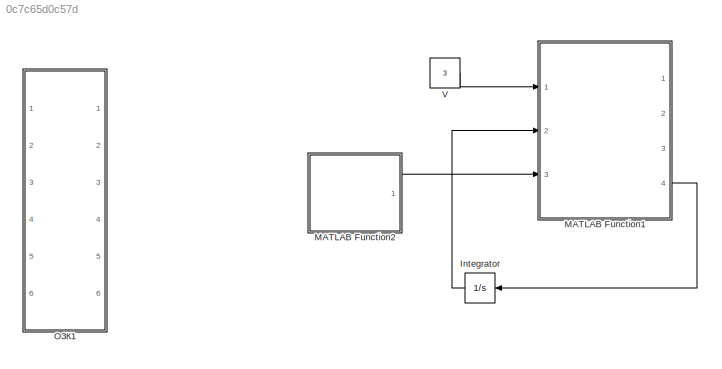
MODEL slx_0c7c65d0c57d
KIND model
CONFIG AbsTol = auto
CONFIG EnableMultiTasking = off
CONFIG FixedStep = auto
CONFIG MaxStep = auto
CONFIG MinStep = auto
CONFIG RelTol = 1e-3
CONFIG SampleTimeConstraint = Unconstrained
CONFIG Solver = VariableStepAuto
CONFIG SolverName = VariableStepAuto
CONFIG StartTime = 0.0
CONFIG StopTime = 10.0
BLOCK [Integrator] Integrator
  Ports = [1, 1]
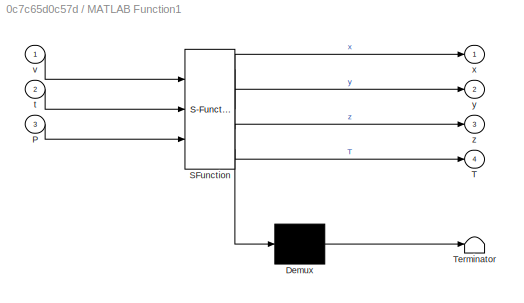
BLOCK [SubSystem] MATLAB Function1
  ErrorFcn = Stateflow.Translate.translate
  PermitHierarchicalResolution = ExplicitOnly
  Ports = [3, 4]
  RequestExecContextInheritance = off
  SFBlockType = MATLAB Function
  TreatAsAtomicUnit = on
BLOCK [Demux] MATLAB Function1/ Demux 
  Outputs = 1
  Ports = [1, 1]
BLOCK [S-Function] MATLAB Function1/ SFunction 
  EnableBusSupport = on
  FunctionName = sf_sfun
  PortCounts = [3 5]
  Ports = [3, 5]
  SFcnIsStateOwnerBlock = off
  SFunctionDeploymentMode = off
  Tag = Stateflow S-Function chernovik 3
BLOCK [Terminator] MATLAB Function1/ Terminator 
BLOCK [Inport] MATLAB Function1/P
  IconDisplay = Port number
  Port = 3
BLOCK [Outport] MATLAB Function1/T
  IconDisplay = Port number
  Port = 4
BLOCK [Inport] MATLAB Function1/t
  IconDisplay = Port number
  Port = 2
BLOCK [Inport] MATLAB Function1/v
  IconDisplay = Port number
BLOCK [Outport] MATLAB Function1/x
  IconDisplay = Port number
BLOCK [Outport] MATLAB Function1/y
  IconDisplay = Port number
  Port = 2
BLOCK [Outport] MATLAB Function1/z
  IconDisplay = Port number
  Port = 3
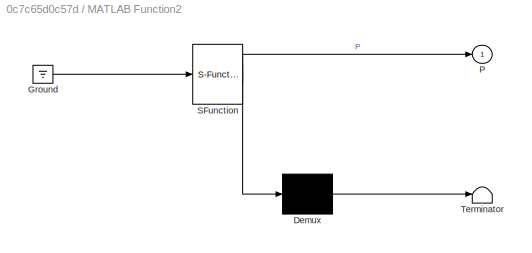
BLOCK [SubSystem] MATLAB Function2
  ErrorFcn = Stateflow.Translate.translate
  PermitHierarchicalResolution = ExplicitOnly
  Ports = [0, 1]
  RequestExecContextInheritance = off
  SFBlockType = MATLAB Function
  TreatAsAtomicUnit = on
BLOCK [Demux] MATLAB Function2/ Demux 
  Outputs = 1
  Ports = [1, 1]
BLOCK [Ground] MATLAB Function2/ Ground 
BLOCK [S-Function] MATLAB Function2/ SFunction 
  EnableBusSupport = on
  FunctionName = sf_sfun
  PortCounts = [1 2]
  Ports = [1, 2]
  SFcnIsStateOwnerBlock = off
  SFunctionDeploymentMode = off
  Tag = Stateflow S-Function chernovik 1
BLOCK [Terminator] MATLAB Function2/ Terminator 
BLOCK [Outport] MATLAB Function2/P
  IconDisplay = Port number
BLOCK [Constant] V
  Value = 3
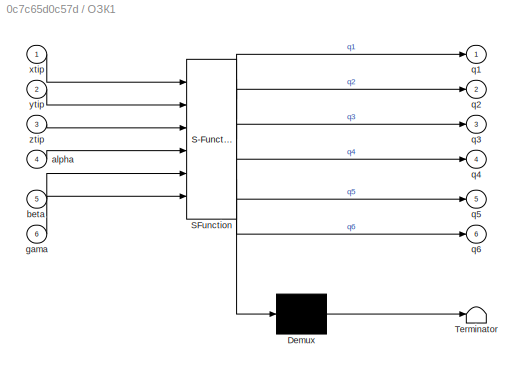
BLOCK [SubSystem] ОЗК1
  ErrorFcn = Stateflow.Translate.translate
  PermitHierarchicalResolution = ExplicitOnly
  Ports = [6, 6]
  RequestExecContextInheritance = off
  SFBlockType = MATLAB Function
  TreatAsAtomicUnit = on
BLOCK [Demux] ОЗК1/ Demux 
  Outputs = 1
  Ports = [1, 1]
BLOCK [S-Function] ОЗК1/ SFunction 
  EnableBusSupport = on
  FunctionName = sf_sfun
  PortCounts = [6 7]
  Ports = [6, 7]
  SFcnIsStateOwnerBlock = off
  SFunctionDeploymentMode = off
  Tag = Stateflow S-Function chernovik 4
BLOCK [Terminator] ОЗК1/ Terminator 
BLOCK [Inport] ОЗК1/alpha
  IconDisplay = Port number
  Port = 4
BLOCK [Inport] ОЗК1/beta
  IconDisplay = Port number
  Port = 5
BLOCK [Inport] ОЗК1/gama
  IconDisplay = Port number
  Port = 6
BLOCK [Outport] ОЗК1/q1
  IconDisplay = Port number
BLOCK [Outport] ОЗК1/q2
  IconDisplay = Port number
  Port = 2
BLOCK [Outport] ОЗК1/q3
  IconDisplay = Port number
  Port = 3
BLOCK [Outport] ОЗК1/q4
  IconDisplay = Port number
  Port = 4
BLOCK [Outport] ОЗК1/q5
  IconDisplay = Port number
  Port = 5
BLOCK [Outport] ОЗК1/q6
  IconDisplay = Port number
  Port = 6
BLOCK [Inport] ОЗК1/xtip
  IconDisplay = Port number
BLOCK [Inport] ОЗК1/ytip
  IconDisplay = Port number
  Port = 2
BLOCK [Inport] ОЗК1/ztip
  IconDisplay = Port number
  Port = 3
LINE Integrator:1 -> MATLAB Function1:2
LINE MATLAB Function1:4 -> Integrator:1
LINE MATLAB Function2:1 -> MATLAB Function1:3
LINE V:1 -> MATLAB Function1:1
CHART MATLAB Function2 states=1 transitions=1
  STATE_LABEL 'eML_blk_kernel()'
  STATE_LABEL 'SCRIPT:\nfunction P = fcn()\n%  Px   = [10 12.5 15 15 15 12.5 10 7.5 5 5 5 7.5 10 12.5 15 15 15 12.5 10 7.5 5 5 5 7.5];\n%  Py   = [5 5 7.5 10 12.5 15 15 15 12.5 10 7.5 5 5 5 7.5 10 12.5 15 15 15 12.5 10 7.5 5]; \n%  Pz   = [6 6 6 6 6 6 6 6 6 6 6 6 6 6 6 6 6 6 6 6 6 6 6 6];\nt=0;\ni=1;\nPx=zeros(1,63);\nPy=Px;\nPz=Py;\nwhile t<2*pi\nx=0.2*cos(t)+0.8;\ny=0.2*sin(t);\nz=0.4;\n\nPx(i)=x;\nPy(i)=y;\nPz(i)=z;\n\nt=t+0.1;...<+30ch>'
CHART MATLAB Function1 states=1 transitions=1
  STATE_LABEL 'eML_blk_kernel()'
  STATE_LABEL 'SCRIPT:\nfunction [x,y,z,T] = TargetPosition(v,t,P)\n\n  i=2;\n  for k = 1:1:length(P)-4\n    if (t>k)\n     i = k+2;\n    end\n  end\n  t = t - i+2;\n\n    Ak=zeros(1,3);\n    Bk=zeros(1,3);\n    Ck=zeros(1,3);\n    Dk=zeros(1,3);\n    F=zeros(1,3);\n    S=zeros(1,3);\n    \n    for j=1:3\n    Ak(j)=(-P(j,i-1)+3*P(j,i)-3*P(j,i+1)+P(j,i+2))/6;\n    Bk(j)=(3*P(j,i-1)-6*P(j,i)+3*P(j,i+1))/6;\n    Ck(j)=(-3*P(j,i-1)+3*P(...<+227ch>'
CHART ОЗК1 states=1 transitions=1
  STATE_LABEL 'eML_blk_kernel()'
  STATE_LABEL "SCRIPT:\nfunction [q1,q2,q3,q4,q5,q6] = INVERSE(xtip,ytip,ztip,alpha,beta,gama) \n\n% DECLERATION OF THE ROBOT PARAMETER\nd1 = 0.352;\na1 = 0.070;\na2 = 0.360;\nd4 = 0.380;\nd6=0.065;\n\n\nNOSOLUTION=1000;\n\n% THIS PROGRAM IS DESIGNED TO SOLVE THE INVERSE WITH RESPECT TO Porg6 OR TCP ACCORDING TO USER SELECTION\n% sel = input ('TO SOLVE THE INVERSE WITH RESPECT TO FRAME6 PRESS 1 WHILE, TO SOLVE THE INVERSE WIT...<+3608ch>"
